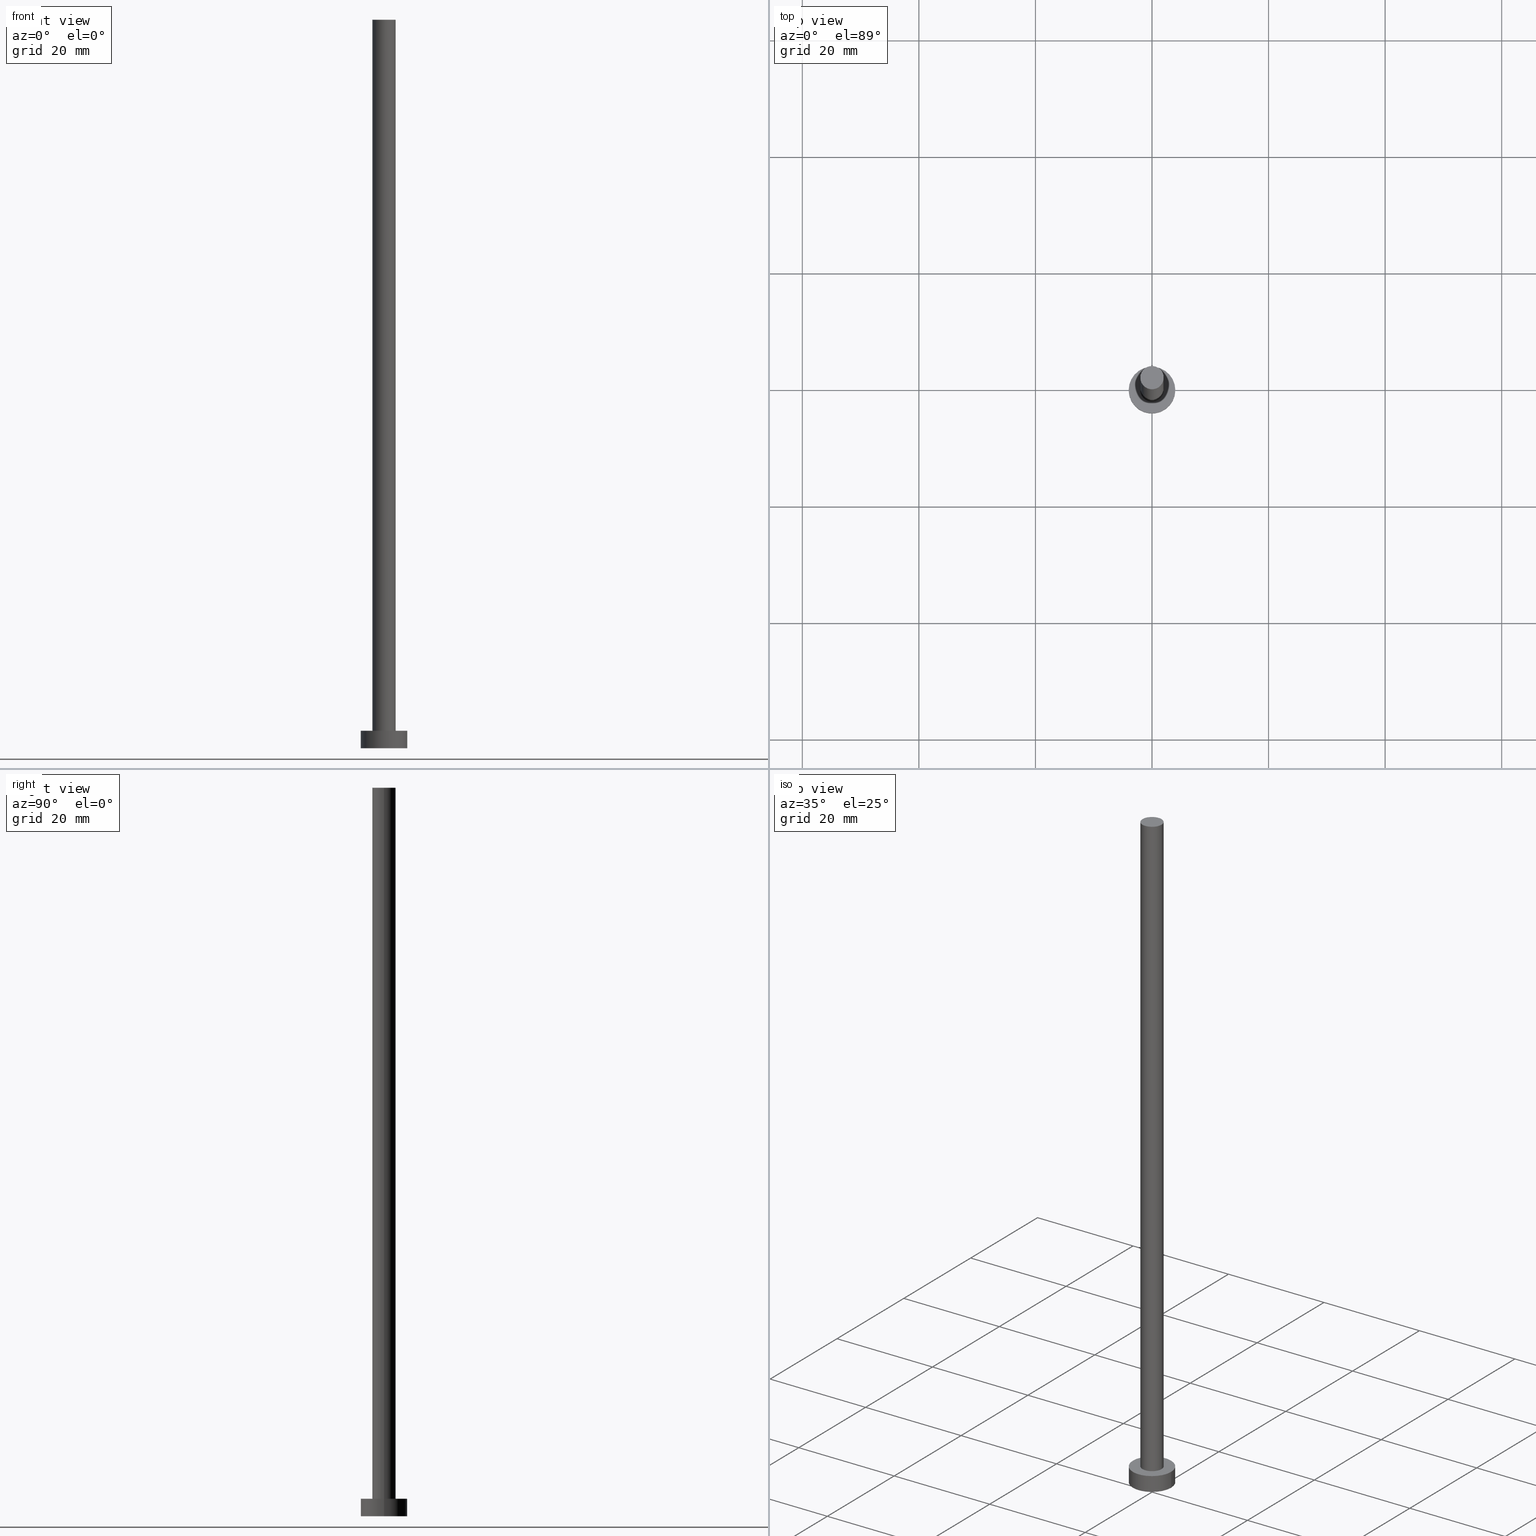
[diagram: canonical four-view strip — front | top / right | iso, engineering-drawing reading convention]
A machine part, canonical four-view strip (front | top / right | iso — engineering-drawing reading convention). The complete STEP part file that produces these views, byte-faithful:
ISO-10303-21;
HEADER;
FILE_DESCRIPTION (( 'STEP AP203' ),
    '1' );
FILE_NAME ('b62b.STEP',
    '2023-02-13T13:58:05',
    ( '' ),
    ( '' ),
    'SwSTEP 2.0',
    'SolidWorks 2019',
    '' );
FILE_SCHEMA (( 'CONFIG_CONTROL_DESIGN' ));
ENDSEC;

DATA;
#1 = DIRECTION ( 'NONE',  ( 0.000000000000000000, 0.000000000000000000, 1.000000000000000000 ) ) ;
#2 = AXIS2_PLACEMENT_3D ( 'NONE', #127, #205, #32 ) ;
#3 = DATE_AND_TIME ( #139, #211 ) ;
#4 = PLANE ( 'NONE',  #176 ) ;
#5 = PERSON_AND_ORGANIZATION ( #87, #122 ) ;
#6 = CYLINDRICAL_SURFACE ( 'NONE', #225, 4.000000000000000000 ) ;
#7 = CC_DESIGN_PERSON_AND_ORGANIZATION_ASSIGNMENT ( #124, #238, ( #65 ) ) ;
#8 = PERSON_AND_ORGANIZATION ( #87, #122 ) ;
#9 = DIRECTION ( 'NONE',  ( 0.000000000000000000, 0.000000000000000000, 1.000000000000000000 ) ) ;
#10 = AXIS2_PLACEMENT_3D ( 'NONE', #88, #250, #76 ) ;
#11 = DIRECTION ( 'NONE',  ( 0.000000000000000000, 0.000000000000000000, 1.000000000000000000 ) ) ;
#12 = CC_DESIGN_DATE_AND_TIME_ASSIGNMENT ( #248, #85, ( #98 ) ) ;
#13 = EDGE_LOOP ( 'NONE', ( #233, #101 ) ) ;
#14 = APPROVAL_ROLE ( '' ) ;
#15 = VERTEX_POINT ( 'NONE', #41 ) ;
#16 = AXIS2_PLACEMENT_3D ( 'NONE', #210, #96, #191 ) ;
#17 = DIRECTION ( 'NONE',  ( 0.000000000000000000, 0.000000000000000000, 1.000000000000000000 ) ) ;
#18 = LOCAL_TIME ( 14, 58, 5.000000000000000000, #213 ) ;
#19 = DIRECTION ( 'NONE',  ( -0.000000000000000000, -0.000000000000000000, -1.000000000000000000 ) ) ;
#20 = EDGE_CURVE ( 'NONE', #120, #67, #173, .T. ) ;
#21 = FACE_OUTER_BOUND ( 'NONE', #69, .T. ) ;
#22 = EDGE_CURVE ( 'NONE', #203, #67, #230, .T. ) ;
#23 = CARTESIAN_POINT ( 'NONE',  ( 0.000000000000000000, 0.000000000000000000, 0.000000000000000000 ) ) ;
#24 = APPROVAL_DATE_TIME ( #3, #163 ) ;
#25 = APPROVAL ( #202, 'NEUR�EN�' ) ;
#26 = ORIENTED_EDGE ( 'NONE', *, *, #22, .T. ) ;
#27 = VERTEX_POINT ( 'NONE', #175 ) ;
#28 = PRODUCT_DEFINITION ( 'NEZN�M�', '', #65, #150 ) ;
#29 = EDGE_LOOP ( 'NONE', ( #160, #125, #199, #43 ) ) ;
#30 = ORIENTED_EDGE ( 'NONE', *, *, #80, .F. ) ;
#31 = EDGE_CURVE ( 'NONE', #143, #119, #171, .T. ) ;
#32 = DIRECTION ( 'NONE',  ( 1.000000000000000000, 0.000000000000000000, 0.000000000000000000 ) ) ;
#33 = APPROVAL_PERSON_ORGANIZATION ( #192, #152, #155 ) ;
#34 = COORDINATED_UNIVERSAL_TIME_OFFSET ( 1, 0, .AHEAD. ) ;
#35 = CC_DESIGN_SECURITY_CLASSIFICATION ( #98, ( #65 ) ) ;
#36 = PERSON_AND_ORGANIZATION_ROLE ( 'design_owner' ) ;
#37 = CIRCLE ( 'NONE', #68, 4.000000000000000000 ) ;
#38 = APPROVAL_ROLE ( '' ) ;
#39 = EDGE_CURVE ( 'NONE', #67, #203, #37, .T. ) ;
#40 = VECTOR ( 'NONE', #81, 1000.000000000000000 ) ;
#41 = CARTESIAN_POINT ( 'NONE',  ( -2.000000000000000000, 0.000000000000000000, 125.0000000000000000 ) ) ;
#42 = DIRECTION ( 'NONE',  ( 1.000000000000000000, 0.000000000000000000, 0.000000000000000000 ) ) ;
#43 = ORIENTED_EDGE ( 'NONE', *, *, #140, .F. ) ;
#44 = PRODUCT_RELATED_PRODUCT_CATEGORY ( 'detail', '', ( #112 ) ) ;
#45 = VECTOR ( 'NONE', #251, 1000.000000000000000 ) ;
#46 = ORIENTED_EDGE ( 'NONE', *, *, #126, .F. ) ;
#47 = PERSON_AND_ORGANIZATION ( #87, #122 ) ;
#48 = CC_DESIGN_DATE_AND_TIME_ASSIGNMENT ( #78, #231, ( #28 ) ) ;
#49 = PERSON_AND_ORGANIZATION_ROLE ( 'classification_officer' ) ;
#50 = APPLICATION_PROTOCOL_DEFINITION ( 'international standard', 'config_control_design', 1994, #134 ) ;
#51 = AXIS2_PLACEMENT_3D ( 'NONE', #245, #226, #105 ) ;
#52 = EDGE_CURVE ( 'NONE', #27, #203, #71, .T. ) ;
#53 = CALENDAR_DATE ( 2023, 13, 2 ) ;
#54 = FACE_OUTER_BOUND ( 'NONE', #240, .T. ) ;
#55 = ADVANCED_FACE ( 'NONE', ( #62 ), #6, .T. ) ;
#56 = PERSON_AND_ORGANIZATION ( #87, #122 ) ;
#57 = DIRECTION ( 'NONE',  ( -1.000000000000000000, 0.000000000000000000, 0.000000000000000000 ) ) ;
#58 = CC_DESIGN_APPROVAL ( #163, ( #65 ) ) ;
#59 = PRODUCT_DEFINITION_SHAPE ( 'NONE', 'NONE',  #28 ) ;
#60 = COORDINATED_UNIVERSAL_TIME_OFFSET ( 1, 0, .AHEAD. ) ;
#61 = DIRECTION ( 'NONE',  ( -1.000000000000000000, 0.000000000000000000, 0.000000000000000000 ) ) ;
#62 = FACE_OUTER_BOUND ( 'NONE', #201, .T. ) ;
#63 = CALENDAR_DATE ( 2023, 13, 2 ) ;
#64 = ORIENTED_EDGE ( 'NONE', *, *, #39, .F. ) ;
#65 = PRODUCT_DEFINITION_FORMATION_WITH_SPECIFIED_SOURCE ( 'LIBOVOLN�', '', #112, .NOT_KNOWN. ) ;
#66 = ORIENTED_EDGE ( 'NONE', *, *, #182, .T. ) ;
#67 = VERTEX_POINT ( 'NONE', #227 ) ;
#68 = AXIS2_PLACEMENT_3D ( 'NONE', #181, #162, #242 ) ;
#69 = EDGE_LOOP ( 'NONE', ( #239, #198, #121, #26 ) ) ;
#70 = COORDINATED_UNIVERSAL_TIME_OFFSET ( 1, 0, .AHEAD. ) ;
#71 = LINE ( 'NONE', #254, #208 ) ;
#72 = EDGE_CURVE ( 'NONE', #236, #15, #117, .T. ) ;
#73 = PERSON_AND_ORGANIZATION_ROLE ( 'design_supplier' ) ;
#74 = AXIS2_PLACEMENT_3D ( 'NONE', #188, #136, #116 ) ;
#75 = DIRECTION ( 'NONE',  ( 1.000000000000000000, 0.000000000000000000, -0.000000000000000000 ) ) ;
#76 = DIRECTION ( 'NONE',  ( 1.000000000000000000, 0.000000000000000000, 0.000000000000000000 ) ) ;
#77 = AXIS2_PLACEMENT_3D ( 'NONE', #107, #17, #148 ) ;
#78 = DATE_AND_TIME ( #53, #18 ) ;
#79 = DIRECTION ( 'NONE',  ( 0.000000000000000000, 0.000000000000000000, 1.000000000000000000 ) ) ;
#80 = EDGE_CURVE ( 'NONE', #15, #236, #187, .T. ) ;
#81 = DIRECTION ( 'NONE',  ( -0.000000000000000000, -0.000000000000000000, -1.000000000000000000 ) ) ;
#82 = EDGE_LOOP ( 'NONE', ( #221, #178 ) ) ;
#83 = AXIS2_PLACEMENT_3D ( 'NONE', #158, #9, #42 ) ;
#84 = CALENDAR_DATE ( 2023, 13, 2 ) ;
#85 = DATE_TIME_ROLE ( 'classification_date' ) ;
#86 = CARTESIAN_POINT ( 'NONE',  ( 0.000000000000000000, 0.000000000000000000, 125.0000000000000000 ) ) ;
#87 = PERSON ( 'NEUR�EN�', 'NEUR�EN�', 'NEUR�EN�', ('NEUR�EN�'), ('NEUR�EN�'), ('NEUR�EN�') ) ;
#88 = CARTESIAN_POINT ( 'NONE',  ( 0.000000000000000000, 0.000000000000000000, 0.000000000000000000 ) ) ;
#89 = CC_DESIGN_PERSON_AND_ORGANIZATION_ASSIGNMENT ( #56, #228, ( #28 ) ) ;
#90 = CARTESIAN_POINT ( 'NONE',  ( 2.000000000000000000, 2.449293598294705921E-16, 125.0000000000000000 ) ) ;
#91 = CARTESIAN_POINT ( 'NONE',  ( 0.000000000000000000, 0.000000000000000000, 125.0000000000000000 ) ) ;
#92 = PLANE ( 'NONE',  #180 ) ;
#93 = CARTESIAN_POINT ( 'NONE',  ( 0.000000000000000000, 0.000000000000000000, 3.000000000000000000 ) ) ;
#94 = AXIS2_PLACEMENT_3D ( 'NONE', #93, #229, #57 ) ;
#95 = CARTESIAN_POINT ( 'NONE',  ( -4.000000000000000000, 0.000000000000000000, 0.000000000000000000 ) ) ;
#96 = DIRECTION ( 'NONE',  ( 0.000000000000000000, 0.000000000000000000, 1.000000000000000000 ) ) ;
#97 = ADVANCED_FACE ( 'NONE', ( #21 ), #167, .T. ) ;
#98 = SECURITY_CLASSIFICATION ( '', '', #130 ) ;
#99 = ADVANCED_FACE ( 'NONE', ( #54 ), #4, .F. ) ;
#100 = ORIENTED_EDGE ( 'NONE', *, *, #39, .T. ) ;
#101 = ORIENTED_EDGE ( 'NONE', *, *, #72, .T. ) ;
#102 = DIRECTION ( 'NONE',  ( 1.000000000000000000, 0.000000000000000000, -0.000000000000000000 ) ) ;
#103 = MECHANICAL_CONTEXT ( 'NONE', #134, 'mechanical' ) ;
#104 = ADVANCED_FACE ( 'NONE', ( #137, #157 ), #92, .T. ) ;
#105 = DIRECTION ( 'NONE',  ( 1.000000000000000000, 0.000000000000000000, 0.000000000000000000 ) ) ;
#106 = LOCAL_TIME ( 14, 58, 5.000000000000000000, #70 ) ;
#107 = CARTESIAN_POINT ( 'NONE',  ( 0.000000000000000000, 0.000000000000000000, 3.000000000000000000 ) ) ;
#108 = APPLICATION_PROTOCOL_DEFINITION ( 'international standard', 'config_control_design', 1994, #129 ) ;
#109 = DIRECTION ( 'NONE',  ( -0.000000000000000000, -0.000000000000000000, -1.000000000000000000 ) ) ;
#110 = LOCAL_TIME ( 14, 58, 5.000000000000000000, #115 ) ;
#111 = DIRECTION ( 'NONE',  ( -1.000000000000000000, 0.000000000000000000, 0.000000000000000000 ) ) ;
#112 = PRODUCT ( 'b62b', 'b62b', '', ( #103 ) ) ;
#113 = DATE_AND_TIME ( #63, #110 ) ;
#114 = PLANE ( 'NONE',  #190 ) ;
#115 = COORDINATED_UNIVERSAL_TIME_OFFSET ( 1, 0, .AHEAD. ) ;
#116 = DIRECTION ( 'NONE',  ( 1.000000000000000000, 0.000000000000000000, 0.000000000000000000 ) ) ;
#117 = CIRCLE ( 'NONE', #16, 2.000000000000000000 ) ;
#118 = CC_DESIGN_PERSON_AND_ORGANIZATION_ASSIGNMENT ( #8, #73, ( #65 ) ) ;
#119 = VERTEX_POINT ( 'NONE', #224 ) ;
#120 = VERTEX_POINT ( 'NONE', #177 ) ;
#121 = ORIENTED_EDGE ( 'NONE', *, *, #52, .T. ) ;
#122 = ORGANIZATION ( 'NEUR�EN�', 'NEUR�EN�', '' ) ;
#123 = EDGE_LOOP ( 'NONE', ( #216, #145 ) ) ;
#124 = PERSON_AND_ORGANIZATION ( #87, #122 ) ;
#125 = ORIENTED_EDGE ( 'NONE', *, *, #126, .T. ) ;
#126 = EDGE_CURVE ( 'NONE', #236, #143, #255, .T. ) ;
#127 = CARTESIAN_POINT ( 'NONE',  ( 0.000000000000000000, 0.000000000000000000, 3.000000000000000000 ) ) ;
#128 =( NAMED_UNIT ( * ) SI_UNIT ( $, .STERADIAN. ) SOLID_ANGLE_UNIT ( ) );
#129 = APPLICATION_CONTEXT ( 'configuration controlled 3d designs of mechanical parts and assemblies' ) ;
#130 = SECURITY_CLASSIFICATION_LEVEL ( 'unclassified' ) ;
#131 = CARTESIAN_POINT ( 'NONE',  ( -2.000000000000000000, 0.000000000000000000, 125.0000000000000000 ) ) ;
#132 = APPROVAL_STATUS ( 'not_yet_approved' ) ;
#133 = DIRECTION ( 'NONE',  ( -0.000000000000000000, -0.000000000000000000, -1.000000000000000000 ) ) ;
#134 = APPLICATION_CONTEXT ( 'configuration controlled 3d designs of mechanical parts and assemblies' ) ;
#135 = AXIS2_PLACEMENT_3D ( 'NONE', #86, #19, #61 ) ;
#136 = DIRECTION ( 'NONE',  ( 0.000000000000000000, 0.000000000000000000, 1.000000000000000000 ) ) ;
#137 = FACE_BOUND ( 'NONE', #82, .T. ) ;
#138 = DIRECTION ( 'NONE',  ( -0.000000000000000000, -0.000000000000000000, -1.000000000000000000 ) ) ;
#139 = CALENDAR_DATE ( 2023, 13, 2 ) ;
#140 = EDGE_CURVE ( 'NONE', #15, #119, #249, .T. ) ;
#141 = ORIENTED_EDGE ( 'NONE', *, *, #20, .T. ) ;
#142 = ORIENTED_EDGE ( 'NONE', *, *, #52, .F. ) ;
#143 = VERTEX_POINT ( 'NONE', #165 ) ;
#144 = CC_DESIGN_APPROVAL ( #25, ( #98 ) ) ;
#145 = ORIENTED_EDGE ( 'NONE', *, *, #147, .T. ) ;
#146 = APPROVAL_DATE_TIME ( #241, #25 ) ;
#147 = EDGE_CURVE ( 'NONE', #120, #27, #237, .T. ) ;
#148 = DIRECTION ( 'NONE',  ( 1.000000000000000000, 0.000000000000000000, 0.000000000000000000 ) ) ;
#149 = APPROVAL_PERSON_ORGANIZATION ( #212, #163, #38 ) ;
#150 = DESIGN_CONTEXT ( 'detailed design', #129, 'design' ) ;
#151 = PERSON_AND_ORGANIZATION ( #87, #122 ) ;
#152 = APPROVAL ( #132, 'NEUR�EN�' ) ;
#153 = CIRCLE ( 'NONE', #77, 2.000000000000000000 ) ;
#154 = CARTESIAN_POINT ( 'NONE',  ( 0.000000000000000000, 0.000000000000000000, 125.0000000000000000 ) ) ;
#155 = APPROVAL_ROLE ( '' ) ;
#156 = LOCAL_TIME ( 14, 58, 5.000000000000000000, #34 ) ;
#157 = FACE_OUTER_BOUND ( 'NONE', #123, .T. ) ;
#158 = CARTESIAN_POINT ( 'NONE',  ( 0.000000000000000000, 0.000000000000000000, 0.000000000000000000 ) ) ;
#159 = ORIENTED_EDGE ( 'NONE', *, *, #147, .F. ) ;
#160 = ORIENTED_EDGE ( 'NONE', *, *, #72, .F. ) ;
#161 = AXIS2_PLACEMENT_3D ( 'NONE', #91, #1, #253 ) ;
#162 = DIRECTION ( 'NONE',  ( 0.000000000000000000, 0.000000000000000000, 1.000000000000000000 ) ) ;
#163 = APPROVAL ( #194, 'NEUR�EN�' ) ;
#164 =( LENGTH_UNIT ( ) NAMED_UNIT ( * ) SI_UNIT ( .MILLI., .METRE. ) );
#165 = CARTESIAN_POINT ( 'NONE',  ( 2.000000000000000000, 2.449293598294705921E-16, 3.000000000000000000 ) ) ;
#166 = CC_DESIGN_APPROVAL ( #152, ( #28 ) ) ;
#167 = CYLINDRICAL_SURFACE ( 'NONE', #94, 4.000000000000000000 ) ;
#168 = CARTESIAN_POINT ( 'NONE',  ( 0.000000000000000000, 0.000000000000000000, 125.0000000000000000 ) ) ;
#169 = CARTESIAN_POINT ( 'NONE',  ( 0.000000000000000000, 0.000000000000000000, 3.000000000000000000 ) ) ;
#170 = APPROVAL_DATE_TIME ( #113, #152 ) ;
#171 = CIRCLE ( 'NONE', #2, 2.000000000000000000 ) ;
#172 = DIRECTION ( 'NONE',  ( -0.000000000000000000, -0.000000000000000000, -1.000000000000000000 ) ) ;
#173 = LINE ( 'NONE', #197, #40 ) ;
#174 = MANIFOLD_SOLID_BREP ( 'P�idat vysunut�m3', #246 ) ;
#175 = CARTESIAN_POINT ( 'NONE',  ( -4.000000000000000000, 0.000000000000000000, 3.000000000000000000 ) ) ;
#176 = AXIS2_PLACEMENT_3D ( 'NONE', #23, #79, #215 ) ;
#177 = CARTESIAN_POINT ( 'NONE',  ( 4.000000000000000000, 4.898587196589412829E-16, 3.000000000000000000 ) ) ;
#178 = ORIENTED_EDGE ( 'NONE', *, *, #31, .F. ) ;
#179 = ORIENTED_EDGE ( 'NONE', *, *, #22, .F. ) ;
#180 = AXIS2_PLACEMENT_3D ( 'NONE', #232, #184, #75 ) ;
#181 = CARTESIAN_POINT ( 'NONE',  ( 0.000000000000000000, 0.000000000000000000, 0.000000000000000000 ) ) ;
#182 = EDGE_CURVE ( 'NONE', #119, #143, #153, .T. ) ;
#183 = CALENDAR_DATE ( 2023, 13, 2 ) ;
#184 = DIRECTION ( 'NONE',  ( 0.000000000000000000, 0.000000000000000000, 1.000000000000000000 ) ) ;
#185 = CARTESIAN_POINT ( 'NONE',  ( 2.000000000000000000, 2.449293598294705921E-16, 125.0000000000000000 ) ) ;
#186 = FACE_OUTER_BOUND ( 'NONE', #217, .T. ) ;
#187 = CIRCLE ( 'NONE', #161, 2.000000000000000000 ) ;
#188 = CARTESIAN_POINT ( 'NONE',  ( 0.000000000000000000, 0.000000000000000000, 3.000000000000000000 ) ) ;
#189 = ADVANCED_BREP_SHAPE_REPRESENTATION ( 'b62b', ( #174, #10 ), #222 ) ;
#190 = AXIS2_PLACEMENT_3D ( 'NONE', #168, #11, #102 ) ;
#191 = DIRECTION ( 'NONE',  ( 1.000000000000000000, 0.000000000000000000, 0.000000000000000000 ) ) ;
#192 = PERSON_AND_ORGANIZATION ( #87, #122 ) ;
#193 = ADVANCED_FACE ( 'NONE', ( #186 ), #247, .T. ) ;
#194 = APPROVAL_STATUS ( 'not_yet_approved' ) ;
#195 = DIRECTION ( 'NONE',  ( -1.000000000000000000, 0.000000000000000000, 0.000000000000000000 ) ) ;
#196 = ADVANCED_FACE ( 'NONE', ( #234 ), #214, .T. ) ;
#197 = CARTESIAN_POINT ( 'NONE',  ( 4.000000000000000000, 4.898587196589412829E-16, 3.000000000000000000 ) ) ;
#198 = ORIENTED_EDGE ( 'NONE', *, *, #218, .F. ) ;
#199 = ORIENTED_EDGE ( 'NONE', *, *, #31, .T. ) ;
#200 = VECTOR ( 'NONE', #109, 1000.000000000000000 ) ;
#201 = EDGE_LOOP ( 'NONE', ( #159, #141, #100, #142 ) ) ;
#202 = APPROVAL_STATUS ( 'not_yet_approved' ) ;
#203 = VERTEX_POINT ( 'NONE', #95 ) ;
#204 = SHAPE_DEFINITION_REPRESENTATION ( #59, #189 ) ;
#205 = DIRECTION ( 'NONE',  ( 0.000000000000000000, 0.000000000000000000, 1.000000000000000000 ) ) ;
#206 = AXIS2_PLACEMENT_3D ( 'NONE', #154, #138, #195 ) ;
#207 =( NAMED_UNIT ( * ) PLANE_ANGLE_UNIT ( ) SI_UNIT ( $, .RADIAN. ) );
#208 = VECTOR ( 'NONE', #172, 1000.000000000000000 ) ;
#209 = FACE_OUTER_BOUND ( 'NONE', #13, .T. ) ;
#210 = CARTESIAN_POINT ( 'NONE',  ( 0.000000000000000000, 0.000000000000000000, 125.0000000000000000 ) ) ;
#211 = LOCAL_TIME ( 14, 58, 5.000000000000000000, #60 ) ;
#212 = PERSON_AND_ORGANIZATION ( #87, #122 ) ;
#213 = COORDINATED_UNIVERSAL_TIME_OFFSET ( 1, 0, .AHEAD. ) ;
#214 = CYLINDRICAL_SURFACE ( 'NONE', #206, 2.000000000000000000 ) ;
#215 = DIRECTION ( 'NONE',  ( 1.000000000000000000, 0.000000000000000000, -0.000000000000000000 ) ) ;
#216 = ORIENTED_EDGE ( 'NONE', *, *, #218, .T. ) ;
#217 = EDGE_LOOP ( 'NONE', ( #46, #30, #219, #66 ) ) ;
#218 = EDGE_CURVE ( 'NONE', #27, #120, #252, .T. ) ;
#219 = ORIENTED_EDGE ( 'NONE', *, *, #140, .T. ) ;
#220 = APPROVAL_PERSON_ORGANIZATION ( #47, #25, #14 ) ;
#221 = ORIENTED_EDGE ( 'NONE', *, *, #182, .F. ) ;
#222 =( GEOMETRIC_REPRESENTATION_CONTEXT ( 3 ) GLOBAL_UNCERTAINTY_ASSIGNED_CONTEXT ( ( #244 ) ) GLOBAL_UNIT_ASSIGNED_CONTEXT ( ( #164, #207, #128 ) ) REPRESENTATION_CONTEXT ( 'NONE', 'WORKASPACE' ) );
#223 = CC_DESIGN_PERSON_AND_ORGANIZATION_ASSIGNMENT ( #5, #36, ( #112 ) ) ;
#224 = CARTESIAN_POINT ( 'NONE',  ( -2.000000000000000000, 0.000000000000000000, 3.000000000000000000 ) ) ;
#225 = AXIS2_PLACEMENT_3D ( 'NONE', #169, #133, #111 ) ;
#226 = DIRECTION ( 'NONE',  ( 0.000000000000000000, 0.000000000000000000, 1.000000000000000000 ) ) ;
#227 = CARTESIAN_POINT ( 'NONE',  ( 4.000000000000000000, 4.898587196589412829E-16, 0.000000000000000000 ) ) ;
#228 = PERSON_AND_ORGANIZATION_ROLE ( 'creator' ) ;
#229 = DIRECTION ( 'NONE',  ( -0.000000000000000000, -0.000000000000000000, -1.000000000000000000 ) ) ;
#230 = CIRCLE ( 'NONE', #83, 4.000000000000000000 ) ;
#231 = DATE_TIME_ROLE ( 'creation_date' ) ;
#232 = CARTESIAN_POINT ( 'NONE',  ( 0.000000000000000000, 0.000000000000000000, 3.000000000000000000 ) ) ;
#233 = ORIENTED_EDGE ( 'NONE', *, *, #80, .T. ) ;
#234 = FACE_OUTER_BOUND ( 'NONE', #29, .T. ) ;
#235 = CC_DESIGN_PERSON_AND_ORGANIZATION_ASSIGNMENT ( #151, #49, ( #98 ) ) ;
#236 = VERTEX_POINT ( 'NONE', #90 ) ;
#237 = CIRCLE ( 'NONE', #51, 4.000000000000000000 ) ;
#238 = PERSON_AND_ORGANIZATION_ROLE ( 'creator' ) ;
#239 = ORIENTED_EDGE ( 'NONE', *, *, #20, .F. ) ;
#240 = EDGE_LOOP ( 'NONE', ( #179, #64 ) ) ;
#241 = DATE_AND_TIME ( #183, #106 ) ;
#242 = DIRECTION ( 'NONE',  ( 1.000000000000000000, 0.000000000000000000, 0.000000000000000000 ) ) ;
#243 = ADVANCED_FACE ( 'NONE', ( #209 ), #114, .T. ) ;
#244 = UNCERTAINTY_MEASURE_WITH_UNIT (LENGTH_MEASURE( 1.000000000000000082E-05 ), #164, 'distance_accuracy_value', 'NONE');
#245 = CARTESIAN_POINT ( 'NONE',  ( 0.000000000000000000, 0.000000000000000000, 3.000000000000000000 ) ) ;
#246 = CLOSED_SHELL ( 'NONE', ( #196, #55, #97, #104, #99, #193, #243 ) ) ;
#247 = CYLINDRICAL_SURFACE ( 'NONE', #135, 2.000000000000000000 ) ;
#248 = DATE_AND_TIME ( #84, #156 ) ;
#249 = LINE ( 'NONE', #131, #200 ) ;
#250 = DIRECTION ( 'NONE',  ( 0.000000000000000000, 0.000000000000000000, 1.000000000000000000 ) ) ;
#251 = DIRECTION ( 'NONE',  ( -0.000000000000000000, -0.000000000000000000, -1.000000000000000000 ) ) ;
#252 = CIRCLE ( 'NONE', #74, 4.000000000000000000 ) ;
#253 = DIRECTION ( 'NONE',  ( 1.000000000000000000, 0.000000000000000000, 0.000000000000000000 ) ) ;
#254 = CARTESIAN_POINT ( 'NONE',  ( -4.000000000000000000, 0.000000000000000000, 3.000000000000000000 ) ) ;
#255 = LINE ( 'NONE', #185, #45 ) ;
ENDSEC;
END-ISO-10303-21;
